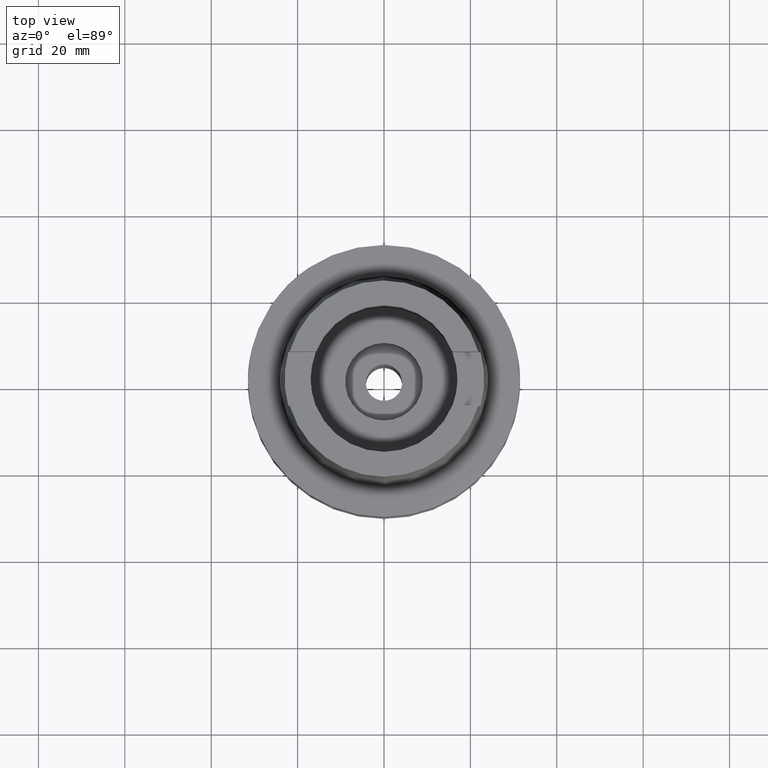
[diagram: clean part render]
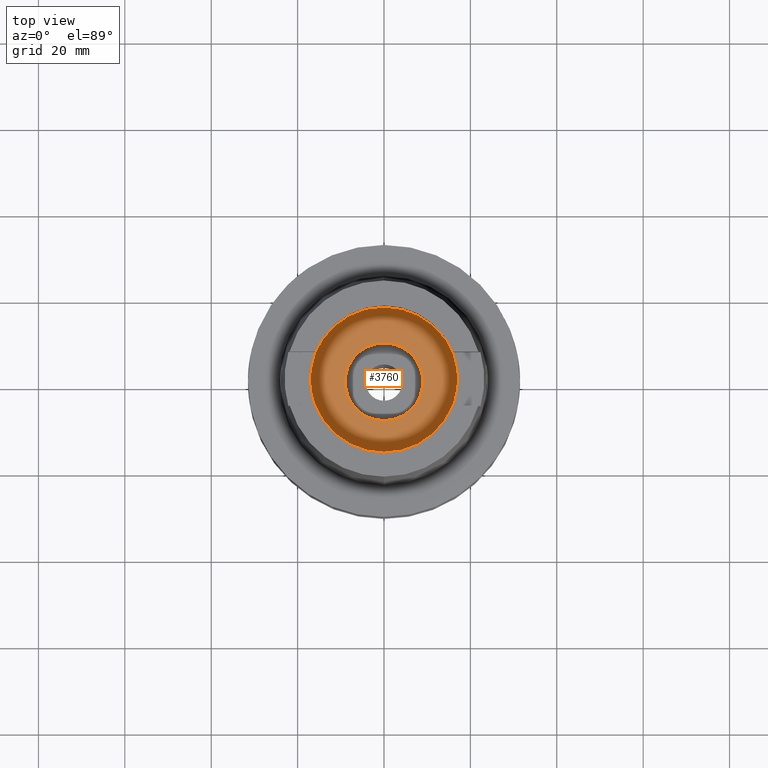
[diagram: same view with one face highlighted and labeled with its STEP entity id]
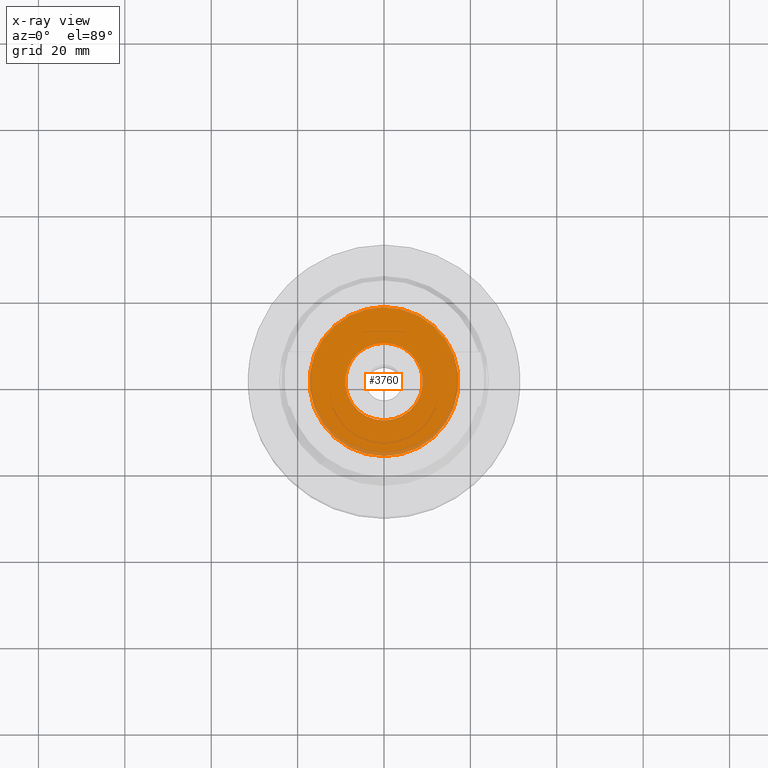
[diagram: x-ray of the same camera — body ghosted, the highlighted face saturated]
A machine part, top view. The second image highlights one B-rep face of the part: STEP entity #3760.
The next image is the same camera in x-ray: the body ghosted, the highlighted face saturated — about 6% of this face is hidden behind the body in this view.
In plain terms, the highlighted planar face has unit normal (0, 0, 1).
Its self-contained STEP definition (entity closure, byte-faithful):
#1697=CARTESIAN_POINT('',(0.E0,0.E0,-9.95E0));
#1698=DIRECTION('',(0.E0,0.E0,-1.E0));
#1699=DIRECTION('',(0.E0,-1.E0,0.E0));
#1700=AXIS2_PLACEMENT_3D('',#1697,#1698,#1699);
#1705=CARTESIAN_POINT('',(0.E0,0.E0,-9.95E0));
#1706=DIRECTION('',(0.E0,0.E0,-1.E0));
#1707=DIRECTION('',(0.E0,1.E0,0.E0));
#1708=AXIS2_PLACEMENT_3D('',#1705,#1706,#1707);
#1713=CARTESIAN_POINT('',(0.E0,0.E0,-9.95E0));
#1714=DIRECTION('',(0.E0,0.E0,1.E0));
#1715=DIRECTION('',(0.E0,-1.E0,0.E0));
#1716=AXIS2_PLACEMENT_3D('',#1713,#1714,#1715);
#1721=CARTESIAN_POINT('',(0.E0,0.E0,-9.95E0));
#1722=DIRECTION('',(0.E0,0.E0,1.E0));
#1723=DIRECTION('',(0.E0,1.E0,0.E0));
#1724=AXIS2_PLACEMENT_3D('',#1721,#1722,#1723);
#2245=CARTESIAN_POINT('',(0.E0,1.725E1,-9.95E0));
#2246=VERTEX_POINT('',#2245);
#2247=CARTESIAN_POINT('',(0.E0,-1.725E1,-9.95E0));
#2248=VERTEX_POINT('',#2247);
#2249=CARTESIAN_POINT('',(0.E0,-9.E0,-9.95E0));
#2250=CARTESIAN_POINT('',(0.E0,9.E0,-9.95E0));
#2251=VERTEX_POINT('',#2249);
#2252=VERTEX_POINT('',#2250);
#3745=CARTESIAN_POINT('',(0.E0,0.E0,-9.95E0));
#3746=DIRECTION('',(0.E0,0.E0,1.E0));
#3747=DIRECTION('',(0.E0,1.E0,0.E0));
#3748=AXIS2_PLACEMENT_3D('',#3745,#3746,#3747);
#3749=PLANE('',#3748);
#3751=ORIENTED_EDGE('',*,*,#3750,.T.);
#3753=ORIENTED_EDGE('',*,*,#3752,.T.);
#3754=EDGE_LOOP('',(#3751,#3753));
#3755=FACE_OUTER_BOUND('',#3754,.F.);
#3756=ORIENTED_EDGE('',*,*,#3738,.T.);
#3757=ORIENTED_EDGE('',*,*,#3727,.T.);
#3758=EDGE_LOOP('',(#3756,#3757));
#3759=FACE_BOUND('',#3758,.F.);
#1701=CIRCLE('',#1700,1.725E1);
#1709=CIRCLE('',#1708,1.725E1);
#1717=CIRCLE('',#1716,9.E0);
#1725=CIRCLE('',#1724,9.E0);
#3727=EDGE_CURVE('',#2252,#2251,#1725,.T.);
#3738=EDGE_CURVE('',#2251,#2252,#1717,.T.);
#3750=EDGE_CURVE('',#2248,#2246,#1701,.T.);
#3752=EDGE_CURVE('',#2246,#2248,#1709,.T.);
#3760=ADVANCED_FACE('',(#3755,#3759),#3749,.T.);